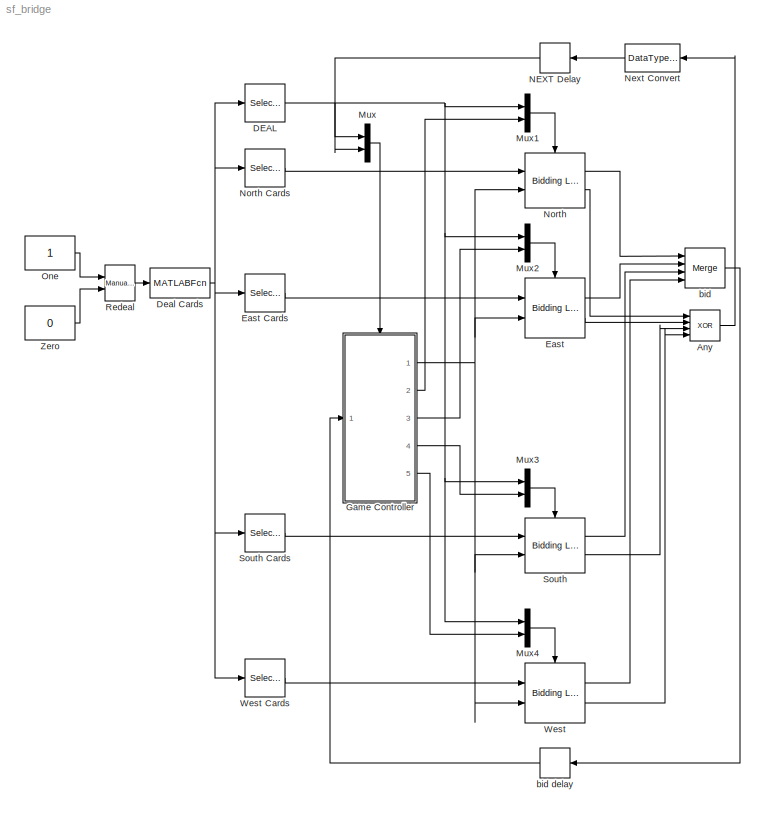
MODEL sf_bridge
KIND model
BLOCK [Logic] Any
  AllPortsSameDT = off
  Inputs = 4
  Operator = XOR
  Ports = [4, 1]
BLOCK [Selector] DEAL
  Elements = [1]
  InputPortWidth = 53
  Ports = [1, 1]
BLOCK [MATLABFcn] Deal Cards
  MATLABFcn = sf_deal_cards
  OutputDimensions = 53
BLOCK [Reference] East  REF=sf_bidder/Bidding Logic  (lib defined in mdl_761cc943649f, slx_5b381c97c86d)
  Ports = [2, 2, 0, 1]
  ShowPortLabels = on
  SourceBlock = sf_bidder/Bidding Logic
  SourceType = Stateflow
BLOCK [Selector] East Cards
  Elements = [15:27]
  InputPortWidth = 53
  Ports = [1, 1]
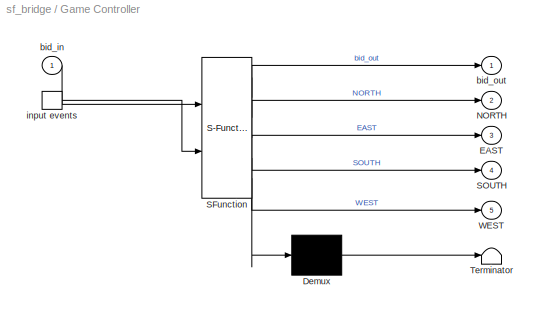
BLOCK [SubSystem] Game Controller
  MaskDescription = Stateflow diagram
  MaskDisplay = plot(sf('Private','sfblk','xIcon'),sf('Private','sfblk','yIcon'));text(0.5,0,sf('Private', 'sfblk', 'tIcon'),'HorizontalAl','Center','VerticalAl','Bottom');
  MaskIconFrame = off
  MaskIconOpaque = off
  MaskIconRotate = none
  MaskIconUnits = autoscale
  MaskSelfModifiable = on
  MaskType = Stateflow
  MinAlgLoopOccurrences = off
  Ports = [1, 5, 0, 1]
  PropExecContextAcrossSSBoundary = on
  RTWSystemCode = Auto
  TreatAsAtomicUnit = off
BLOCK [Demux] Game Controller/ Demux 
  Outputs = 1
  Ports = [1, 1]
BLOCK [S-Function] Game Controller/ SFunction 
  FunctionName = sf_sfun
  PortCounts = [2 6]
  Ports = [2, 6]
  Tag = Stateflow S-Function sf_bridge 1
BLOCK [Terminator] Game Controller/ Terminator 
BLOCK [TriggerPort] Game Controller/ input events 
  Ports = [0, 1]
  ShowOutputPort = on
  StatesWhenEnabling = reset
  TriggerType = either
BLOCK [Outport] Game Controller/EAST
  BusOutputAsStruct = off
  IconDisplay = Port number
  Port = 3
BLOCK [Outport] Game Controller/NORTH
  BusOutputAsStruct = off
  IconDisplay = Port number
  Port = 2
BLOCK [Outport] Game Controller/SOUTH
  BusOutputAsStruct = off
  IconDisplay = Port number
  Port = 4
BLOCK [Outport] Game Controller/WEST
  BusOutputAsStruct = off
  IconDisplay = Port number
  Port = 5
BLOCK [Inport] Game Controller/bid_in
  IconDisplay = Port number
  LatchInput = off
  Port = 1
BLOCK [Outport] Game Controller/bid_out
  BusOutputAsStruct = off
  IconDisplay = Port number
BLOCK [Mux] Mux
  DisplayOption = bar
  Inputs = 2
  Ports = [2, 1]
BLOCK [Mux] Mux1
  DisplayOption = bar
  Inputs = 2
  Ports = [2, 1]
BLOCK [Mux] Mux2
  DisplayOption = bar
  Inputs = 2
  Ports = [2, 1]
BLOCK [Mux] Mux3
  DisplayOption = bar
  Inputs = 2
  Ports = [2, 1]
BLOCK [Mux] Mux4
  DisplayOption = bar
  Inputs = 2
  Ports = [2, 1]
BLOCK [Memory] NEXT Delay
BLOCK [DataTypeConversion] Next Convert
BLOCK [Reference] North  REF=sf_bidder/Bidding Logic  (lib defined in mdl_761cc943649f, slx_5b381c97c86d)
  Ports = [2, 2, 0, 1]
  ShowPortLabels = on
  SourceBlock = sf_bidder/Bidding Logic
  SourceType = Stateflow
BLOCK [Selector] North Cards
  Elements = [2:14]
  InputPortWidth = 53
  Ports = [1, 1]
BLOCK [Constant] One
BLOCK [Reference] Redeal  REF=simulink/Signal\nRouting/Manual Switch
  Ports = [2, 1]
  ShowPortLabels = on
  SourceBlock = simulink/Signal\nRouting/Manual Switch
  SourceType = Manual Switch
  action = 0
  sw = 0
BLOCK [Reference] South  REF=sf_bidder/Bidding Logic  (lib defined in mdl_761cc943649f, slx_5b381c97c86d)
  Ports = [2, 2, 0, 1]
  ShowPortLabels = on
  SourceBlock = sf_bidder/Bidding Logic
  SourceType = Stateflow
BLOCK [Selector] South Cards
  Elements = [28:40]
  InputPortWidth = 53
  Ports = [1, 1]
BLOCK [Reference] West  REF=sf_bidder/Bidding Logic  (lib defined in mdl_761cc943649f, slx_5b381c97c86d)
  Ports = [2, 2, 0, 1]
  ShowPortLabels = on
  SourceBlock = sf_bidder/Bidding Logic
  SourceType = Stateflow
BLOCK [Selector] West Cards
  Elements = [41:53]
  InputPortWidth = 53
  Ports = [1, 1]
BLOCK [Constant] Zero
  Value = 0
BLOCK [Merge] bid
  Inputs = 4
  Ports = [4, 1]
BLOCK [Memory] bid delay
LINE Any:1 -> Next Convert:1
NET DEAL:1 -> Mux1:1, Mux2:1, Mux3:1, Mux4:1, Mux:1
NET Deal Cards:1 -> DEAL:1, East Cards:1, North Cards:1, South Cards:1, West Cards:1
LINE East Cards:1 -> East:1
LINE East:1 -> bid:2
LINE East:2 -> Any:2
LINE Game Controller/ Demux :1 -> Game Controller/ Terminator :1
LINE Game Controller/ SFunction :1 -> Game Controller/ Demux :1
LINE Game Controller/ SFunction :2 -> Game Controller/bid_out:1
LINE Game Controller/ SFunction :3 -> Game Controller/NORTH:1
LINE Game Controller/ SFunction :4 -> Game Controller/EAST:1
LINE Game Controller/ SFunction :5 -> Game Controller/SOUTH:1
LINE Game Controller/ SFunction :6 -> Game Controller/WEST:1
LINE Game Controller/ input events :1 -> Game Controller/ SFunction :2
LINE Game Controller/bid_in:1 -> Game Controller/ SFunction :1
NET Game Controller:1 -> East:2, North:2, South:2, West:2
LINE Game Controller:2 -> Mux1:2
LINE Game Controller:3 -> Mux2:2
LINE Game Controller:4 -> Mux3:2
LINE Game Controller:5 -> Mux4:2
LINE Mux1:1 -> North:trigger
LINE Mux2:1 -> East:trigger
LINE Mux3:1 -> South:trigger
LINE Mux4:1 -> West:trigger
LINE Mux:1 -> Game Controller:trigger
LINE NEXT Delay:1 -> Mux:2
LINE Next Convert:1 -> NEXT Delay:1
LINE North Cards:1 -> North:1
LINE North:1 -> bid:1
LINE North:2 -> Any:1
LINE One:1 -> Redeal:1
LINE Redeal:1 -> Deal Cards:1
LINE South Cards:1 -> South:1
LINE South:1 -> bid:3
LINE South:2 -> Any:3
LINE West Cards:1 -> West:1
LINE West:1 -> bid:4
LINE West:2 -> Any:4
LINE Zero:1 -> Redeal:2
LINE bid delay:1 -> Game Controller:1
LINE bid:1 -> bid delay:1
note: NET lines group one-source signal fan-out (src -> all destinations, sorted); 1:1 wires keep LINE
CHART Game Controller states=12 transitions=25
  STATE_LABEL 'North\\nNORTH;'
  STATE_LABEL 'East\\nEAST;'
  STATE_LABEL 'South\\nSOUTH;'
  STATE_LABEL 'West\\nWEST;'
  STATE_LABEL 'Bidder'
  STATE_LABEL 'Done'
  STATE_LABEL 'process_bid()'
  STATE_LABEL "North\\nml.sf_bridge_state('deal', 'North');\\nN_DEAL;"
  STATE_LABEL "West\\nml.sf_bridge_state('deal', 'West');\\nW_DEAL;"
  STATE_LABEL 'Dealer'
  STATE_LABEL "East\\nml.sf_bridge_state('deal', 'East');\\nE_DEAL;"
  STATE_LABEL "South\\nml.sf_bridge_state('deal', 'South');\\nS_DEAL;"
